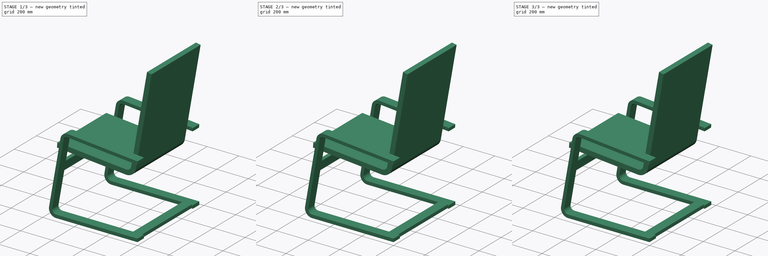
[diagram: build sequence overview — one tinted view per stage of 3, left to right]
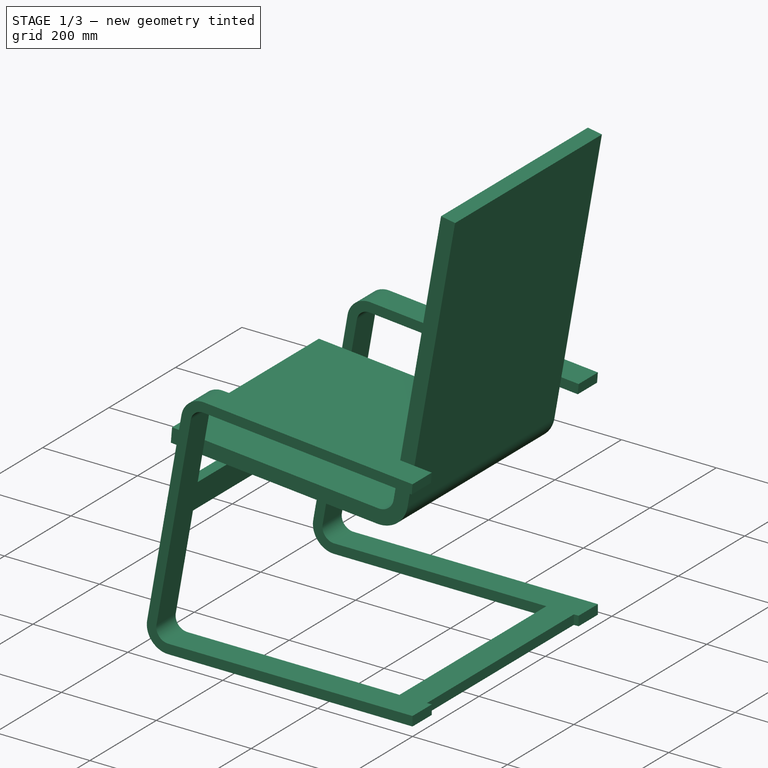
[diagram: stage 1 of 3 — iso view after this stage's code; geometry added in this stage tinted green]
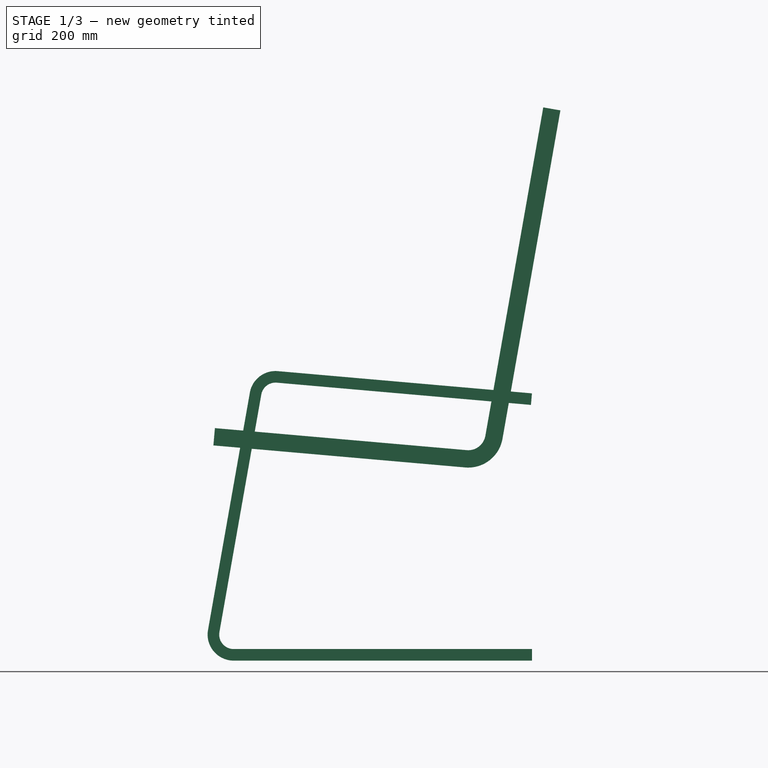
[diagram: stage 1 of 3 — front view after this stage's code; geometry added in this stage tinted green]
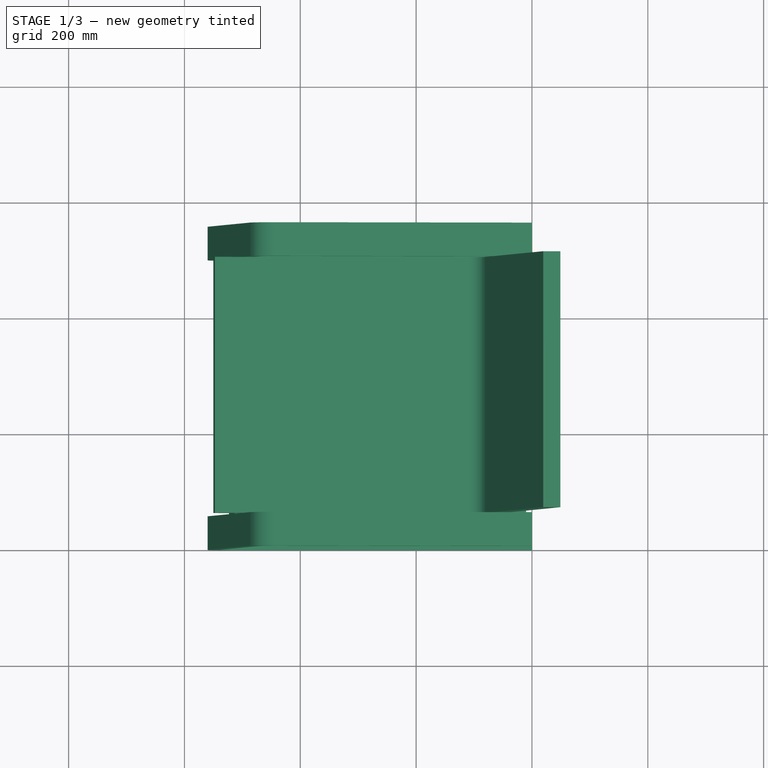
[diagram: stage 1 of 3 — top view after this stage's code; geometry added in this stage tinted green]
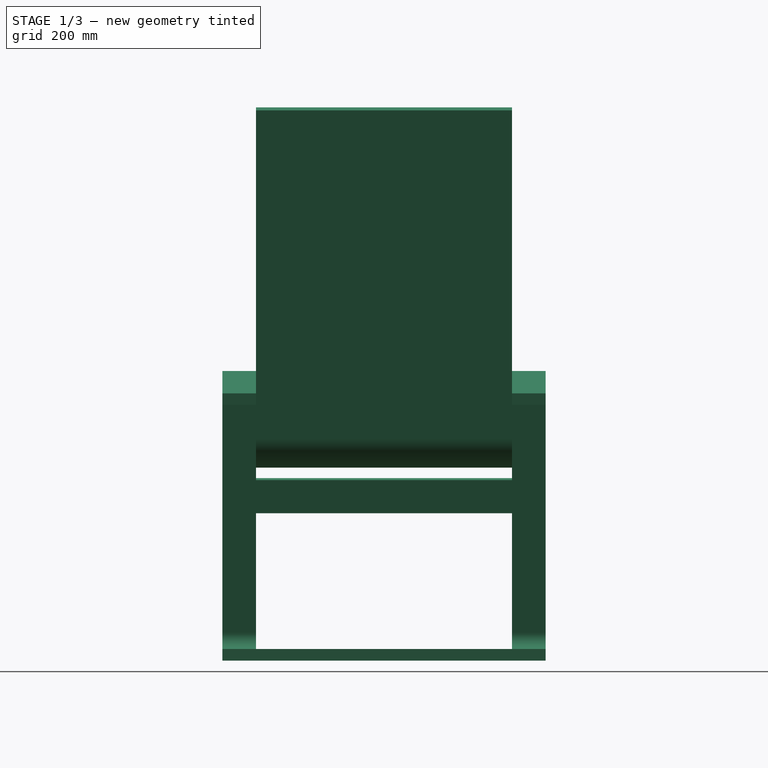
[diagram: stage 1 of 3 — right view after this stage's code; geometry added in this stage tinted green]
FCSTD DOCUMENT  (FreeCAD 0.16R5953 (Git))
Label: IkeaLikeChair
License: All rights reserved
LicenseURL: http://en.wikipedia.org/wiki/All_rights_reserved
objects: Sketcher::SketchObject×6, Part::Sweep×2, Part::FeaturePython×2, PartDesign::Pad×2, Part::Compound×1, Part::Feature×1
note: 16 computed .brp shape members not serialized (recipe doc carries the construction recipe); baked Part::Feature solids carry a one-line shape summary decoded from their .brp

FEATURE [Sketcher::SketchObject] Sketch004
  Placement = pos=(0,58,0) rot=(1,0,0;1.5708rad)
  sketch-geometry (7):
    g0: LineSegment StartX=-550 StartY=371.556 StartZ=0 EndX=-115.229 EndY=333.519 EndZ=0
    g1: LineSegment StartX=-50.9115 StartY=382.872 StartZ=0 EndX=49.0885 EndY=950 EndZ=0
    g2: ArcOfCircle CenterX=-110 CenterY=393.291 CenterZ=0 NormalX=0 NormalY=0 NormalZ=1 Radius=60 StartAngle=4.62512 EndAngle=6.10865
    g3: LineSegment [constr] StartX=-550 StartY=333.291 StartZ=0 EndX=49.0885 EndY=333.291 EndZ=0
    g4: LineSegment [constr] StartX=49.0885 StartY=333.291 StartZ=0 EndX=49.0885 EndY=950 EndZ=0
    g5: LineSegment [constr] StartX=-550 StartY=333.291 StartZ=0 EndX=-550 EndY=950 EndZ=0
    g6: LineSegment [constr] StartX=-550 StartY=950 StartZ=0 EndX=49.0885 EndY=950 EndZ=0
  constraints (22):
    c: Coincident(g2,g0)
    c: Coincident(g2,g1)
    c: Tangent(g2,g1)
    c: Tangent(g0,g2)
    c: Radius(g2) = 60
    c: Horizontal(g3)
    c: Coincident(g3,g4)
    c: Vertical(g4)
    c: Tangent(g2,g3)
    c: Coincident(g3,g5)
    c: Coincident(g5,g6)
    c: Coincident(g6,g4)
    c: Horizontal(g6)
    c: Vertical(g5)
    c: PointOnObject(g0,g5)
    c: DistanceY(g1) = 950
    c: DistanceX(g1,g3) = 100
    c: DistanceX(g3,g2) = 440
    c: DistanceX(g3) = -550
    c: Angle(g0,g3) = 0.0872665
    c: Angle(g1,g4) = 0.174533
    c: Coincident(g4,g1)
FEATURE [Sketcher::SketchObject] Sketch005
  Placement = pos=(-550,58,371.556) rot=(0.593426,0.593426,0.543775;2.14549rad)
  sketch-geometry (4):
    g0: LineSegment StartX=0 StartY=0 StartZ=0 EndX=442 EndY=0 EndZ=0
    g1: LineSegment StartX=442 StartY=0 StartZ=0 EndX=442 EndY=30 EndZ=0
    g2: LineSegment StartX=442 StartY=30 StartZ=0 EndX=0 EndY=30 EndZ=0
    g3: LineSegment StartX=0 StartY=30 StartZ=0 EndX=0 EndY=0 EndZ=0
  constraints (12):
    c: Coincident(g0,g1)
    c: Coincident(g1,g2)
    c: Coincident(g2,g3)
    c: Coincident(g3,g0)
    c: Horizontal(g0)
    c: Horizontal(g2)
    c: Vertical(g1)
    c: Vertical(g3)
    c: DistanceX(g2) = -442
    c: DistanceX(g0) = 0
    c: DistanceY(g0) = 0
    c: DistanceY(g3) = -30
FEATURE [Part::Sweep] Sweep001
  Frenet = true
  Sections = -> [Sketch005]
  Solid = true
  Spine = -> Sketch004 [Edge1,Edge2,Edge3]
  Transition = 1
FEATURE [Part::Feature] Compound001
  shape: bbox 609.1 x 558 x 955.2 mm, 70 faces, 2 solids (baked)
FEATURE [Part::FeaturePython] Equipment  label="Fauteil Ikea"  # WARN: FeaturePython — macro-defined, semantics opaque (R4)
  Base = -> Compound001
  MoveWithHost = false
  Role = 0
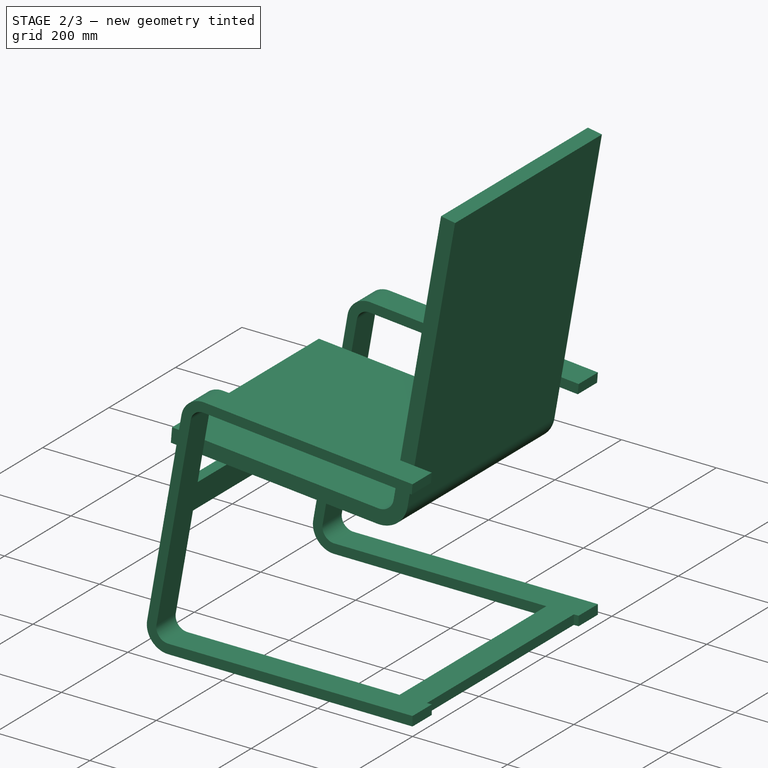
[diagram: stage 2 of 3 — iso view after this stage's code; geometry added in this stage tinted green]
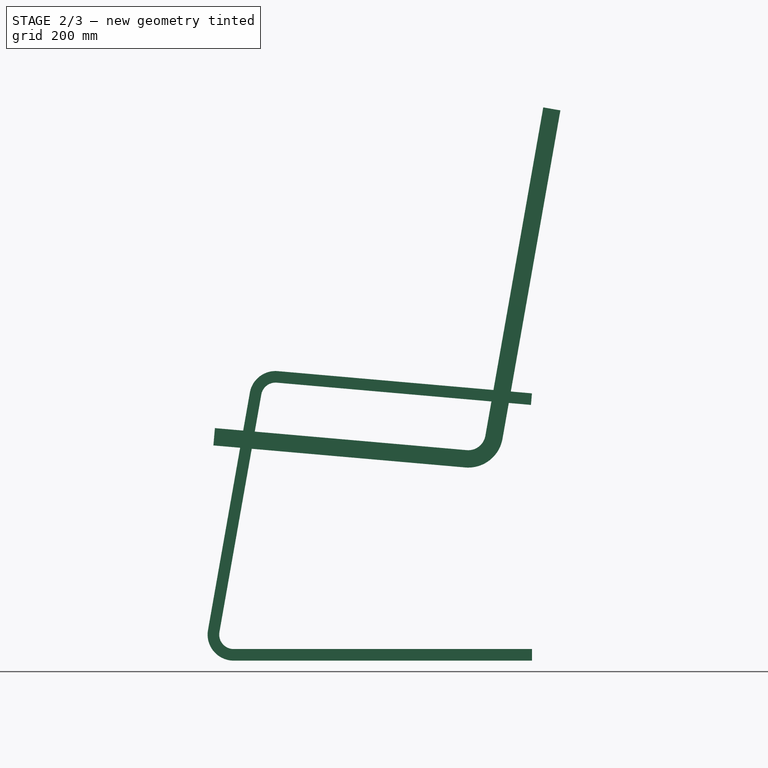
[diagram: stage 2 of 3 — front view after this stage's code; geometry added in this stage tinted green]
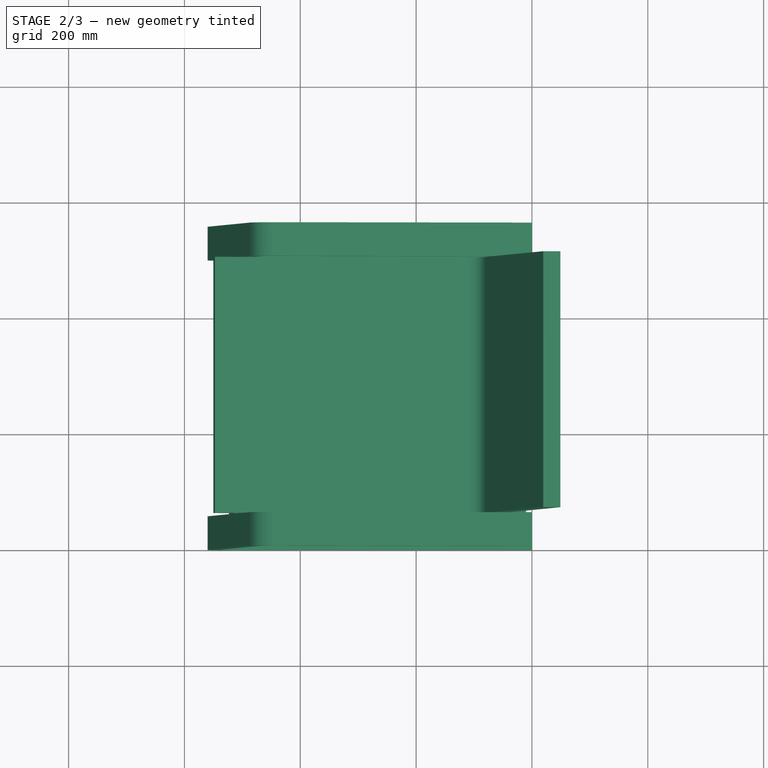
[diagram: stage 2 of 3 — top view after this stage's code; geometry added in this stage tinted green]
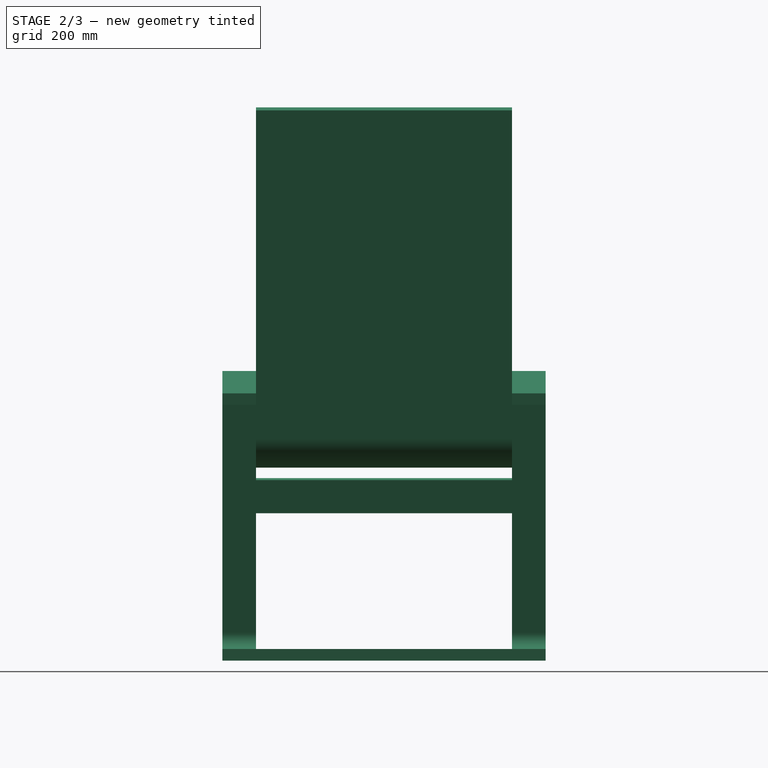
[diagram: stage 2 of 3 — right view after this stage's code; geometry added in this stage tinted green]
FEATURE [Sketcher::SketchObject] Sketch
  Placement = pos=(0,0,0) rot=(1,0,0;1.5708rad)
  sketch-geometry (7):
    g0: LineSegment StartX=0 StartY=0 StartZ=0 EndX=-515 EndY=0 EndZ=0
    g1: ArcOfCircle CenterX=-515 CenterY=45 CenterZ=0 NormalX=0 NormalY=0 NormalZ=1 Radius=45 StartAngle=2.96706 EndAngle=4.71239
    g2: LineSegment StartX=-559.316 StartY=52.8142 StartZ=0 EndX=-487.022 EndY=462.814 EndZ=0
    g3: ArcOfCircle CenterX=-442.706 CenterY=455 CenterZ=0 NormalX=0 NormalY=0 NormalZ=1 Radius=45 StartAngle=1.48353 EndAngle=2.96706
    g4: LineSegment StartX=-438.784 StartY=499.829 StartZ=0 EndX=0 EndY=461.44 EndZ=0
    g5: LineSegment [constr] StartX=-560 StartY=500 StartZ=0 EndX=-560 EndY=0 EndZ=0
    g6: LineSegment [constr] StartX=-560 StartY=500 StartZ=0 EndX=0 EndY=500 EndZ=0
  constraints (25):
    c: Horizontal(g0)
    c: DistanceX(g0) = 0
    c: DistanceY(g0) = 0
    c: Coincident(g1,g0)
    c: Coincident(g2,g1)
    c: Coincident(g3,g2)
    c: Coincident(g3,g4)
    c: Tangent(g3,g4)
    c: Tangent(g3,g2)
    c: Tangent(g2,g1)
    c: Tangent(g1,g0)
    c: Vertical(g5)
    c: Horizontal(g6)
    c: Coincident(g6,g5)
    c: PointOnObject(g5,g-1)
    c: Tangent(g5,g1)
    c: Tangent(g3,g6)
    c: DistanceX(g5) = -560
    c: DistanceY(g5) = -500
    c: PointOnObject(g6,g-2)
    c: Radius(g1) = 45
    c: Equal(g3,g1)
    c: Angle(g2,g5) = 0.174533
    c: Angle(g4,g6) = 0.0872665
    c: PointOnObject(g4,g-2)
FEATURE [Sketcher::SketchObject] Sketch001
  Placement = pos=(0,0,0) rot=(0.57735,0.57735,0.57735;2.0944rad)
  sketch-geometry (4):
    g0: LineSegment StartX=0 StartY=0 StartZ=0 EndX=58 EndY=0 EndZ=0
    g1: LineSegment StartX=58 StartY=0 StartZ=0 EndX=58 EndY=20 EndZ=0
    g2: LineSegment StartX=58 StartY=20 StartZ=0 EndX=0 EndY=20 EndZ=0
    g3: LineSegment StartX=0 StartY=20 StartZ=0 EndX=0 EndY=0 EndZ=0
  constraints (12):
    c: Coincident(g0,g1)
    c: Coincident(g1,g2)
    c: Coincident(g2,g3)
    c: Coincident(g3,g0)
    c: Horizontal(g0)
    c: Horizontal(g2)
    c: Vertical(g1)
    c: Vertical(g3)
    c: DistanceX(g2) = -58
    c: DistanceY(g3) = -20
    c: DistanceX(g0) = 0
    c: DistanceY(g0) = 0
FEATURE [Part::Sweep] Sweep
  Frenet = true
  Sections = -> [Sketch001]
  Solid = true
  Spine = -> Sketch [Edge1,Edge2,Edge3,Edge4,Edge5]
  Transition = 1
FEATURE [Part::FeaturePython] Array  # Draft array (typed FeaturePython)
  Angle = 360
  ArrayType = 0
  Axis = (0,0,1)
  Base = -> Sweep
  Center = (0,0,0)
  Fuse = false
  IntervalAxis = (0,0,0)
  IntervalX = (1,0,0)
  IntervalY = (0,500,0)
  IntervalZ = (0,0,0)
  NumberPolar = 1
  NumberX = 1
  NumberY = 2
  NumberZ = 1
FEATURE [Sketcher::SketchObject] Sketch002
  ExternalGeometry = -> [Array]
  Placement = pos=(0,58,0) rot=(0,0.707107,0.707107;3.14159rad)
  Support = -> Array [Face10]
  sketch-geometry (4):
    g0: LineSegment StartX=503.445 StartY=254.501 StartZ=0 EndX=523.141 EndY=257.974 EndZ=0
    g1: LineSegment StartX=523.141 StartY=257.974 StartZ=0 EndX=513.07 EndY=315.093 EndZ=0
    g2: LineSegment StartX=513.07 StartY=315.093 StartZ=0 EndX=493.373 EndY=311.62 EndZ=0
    g3: LineSegment StartX=493.373 StartY=311.62 StartZ=0 EndX=503.445 EndY=254.501 EndZ=0
  constraints (12):
    c: Coincident(g0,g1)
    c: Coincident(g1,g2)
    c: Coincident(g2,g3)
    c: Coincident(g3,g0)
    c: Perpendicular(g2,g1)
    c: Perpendicular(g3,g2)
    c: Equal(g2,g0)
    c: Distance(g1) = 58
    c: Distance(g2) = 20
    c: PointOnObject(g0,g-3)
    c: PointOnObject(g1,g-3)
    c: Distance(g-3,g1) = 150
FEATURE [PartDesign::Pad] Pad
  Length = 10
  Length2 = 100
  Sketch = -> Sketch002
  Type = 3
  UpToFace = -> Array [Face34]
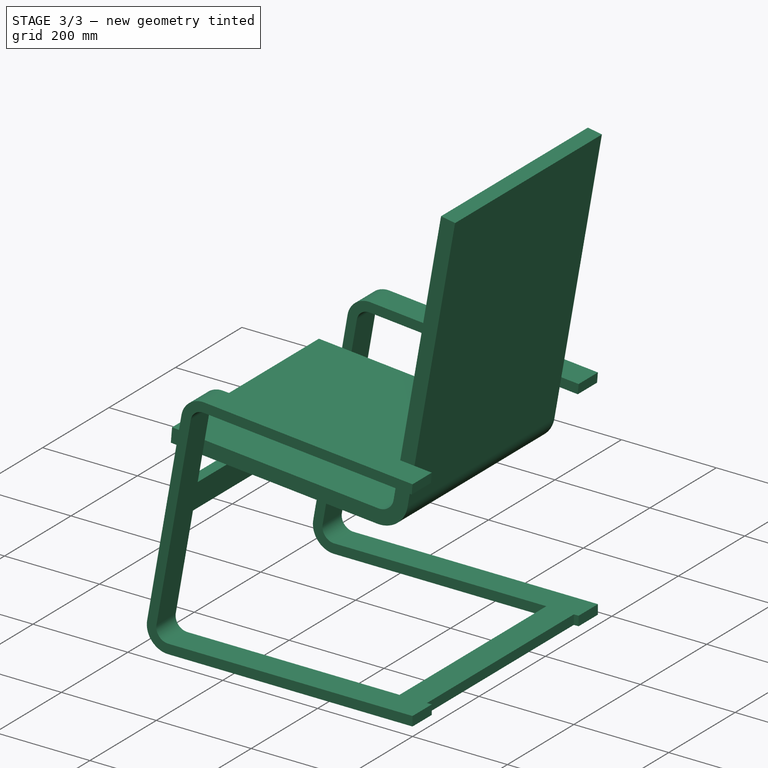
[diagram: stage 3 of 3 — iso view after this stage's code; geometry added in this stage tinted green]
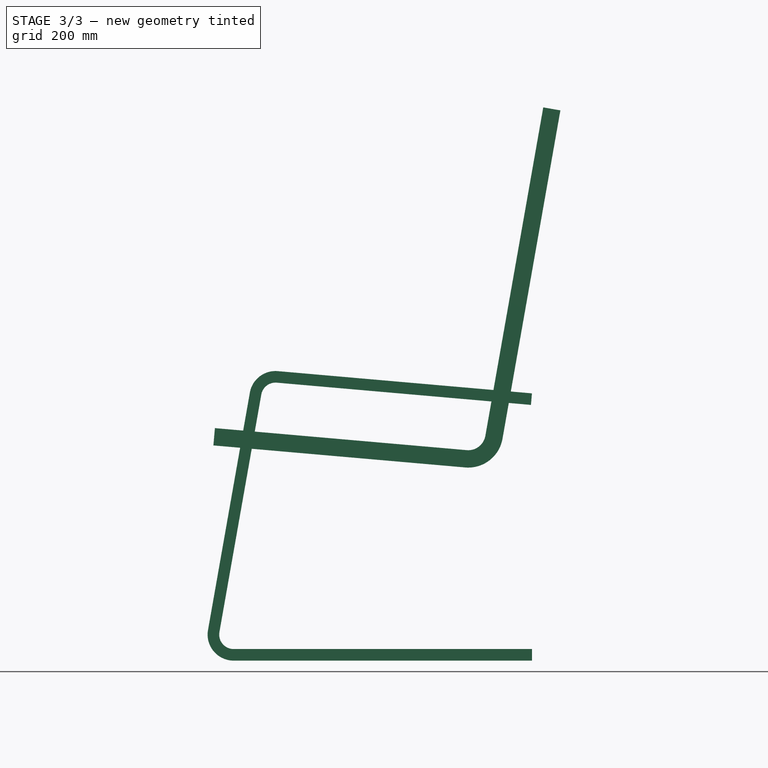
[diagram: stage 3 of 3 — front view after this stage's code; geometry added in this stage tinted green]
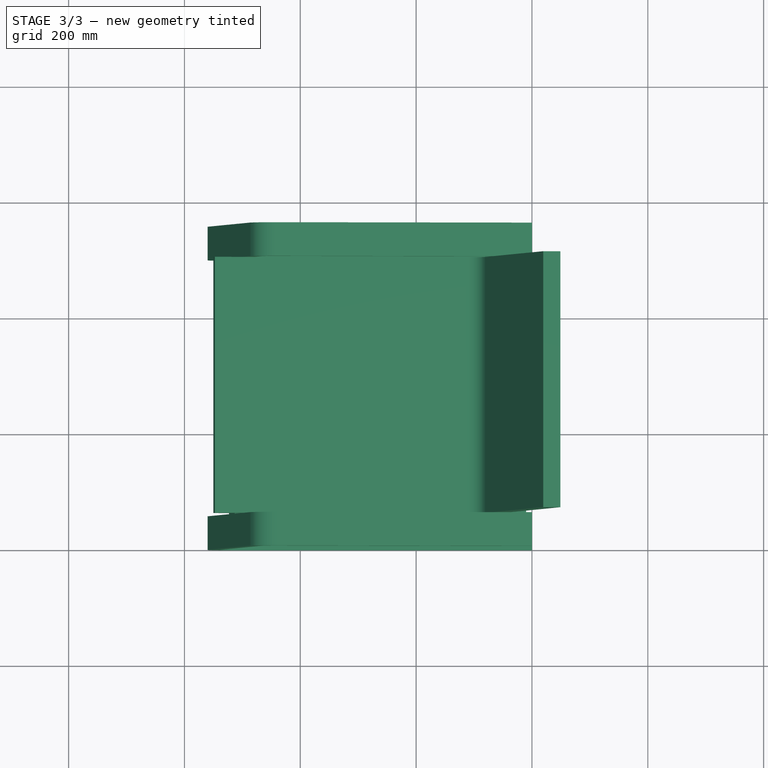
[diagram: stage 3 of 3 — top view after this stage's code; geometry added in this stage tinted green]
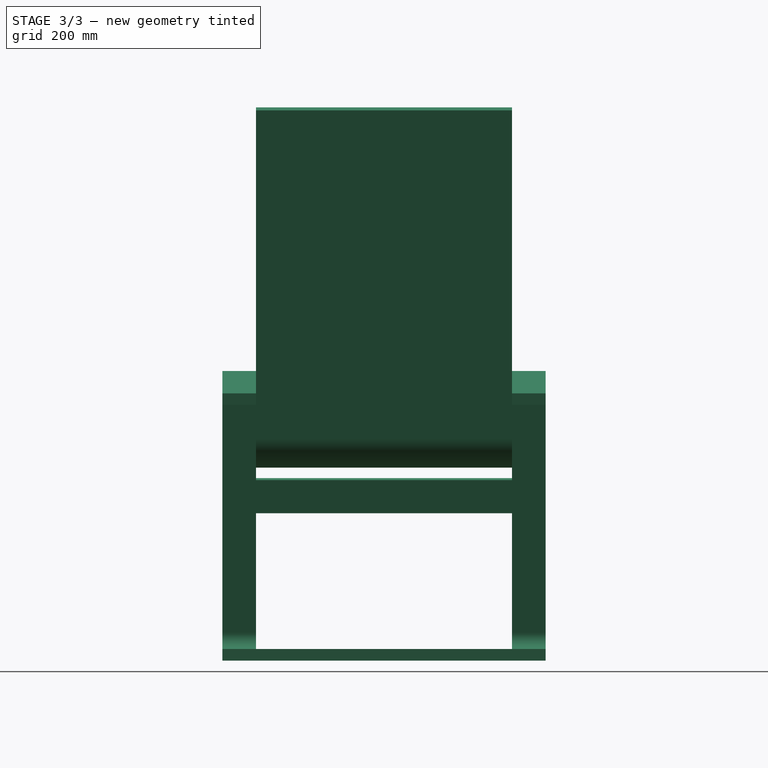
[diagram: stage 3 of 3 — right view after this stage's code; geometry added in this stage tinted green]
FEATURE [Sketcher::SketchObject] Sketch003
  ExternalGeometry = -> [Pad]
  Placement = pos=(0,58,0) rot=(0,0.707107,0.707107;3.14159rad)
  Support = -> Pad [Face4]
  sketch-geometry (4):
    g0: LineSegment StartX=10 StartY=0 StartZ=0 EndX=68 EndY=0 EndZ=0
    g1: LineSegment StartX=68 StartY=0 StartZ=0 EndX=68 EndY=20 EndZ=0
    g2: LineSegment StartX=68 StartY=20 StartZ=0 EndX=10 EndY=20 EndZ=0
    g3: LineSegment StartX=10 StartY=20 StartZ=0 EndX=10 EndY=0 EndZ=0
  constraints (12):
    c: Coincident(g0,g1)
    c: Coincident(g1,g2)
    c: Coincident(g2,g3)
    c: Coincident(g3,g0)
    c: Horizontal(g0)
    c: Horizontal(g2)
    c: Vertical(g1)
    c: Vertical(g3)
    c: DistanceX(g0) = 58
    c: DistanceY(g3) = -20
    c: PointOnObject(g0,g-3)
    c: DistanceX(g-1,g0) = 10
FEATURE [PartDesign::Pad] Pad001
  Length = 10
  Length2 = 100
  Sketch = -> Sketch003
  Type = 3
  UpToFace = -> Pad [Face43]
FEATURE [Part::Compound] Compound
  Links = -> [Pad001,Sweep001]
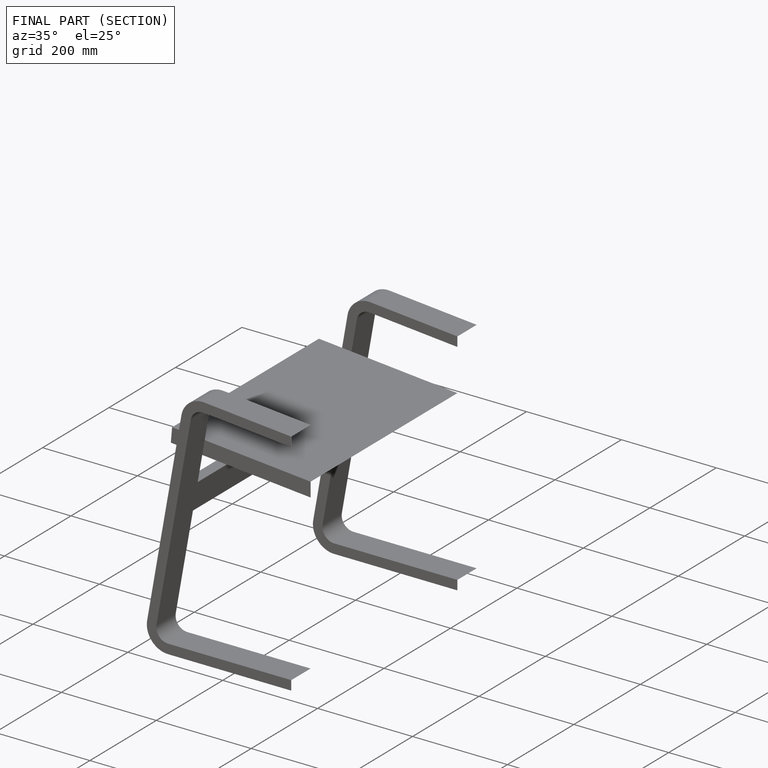
[diagram: finished part — half-section view (interior)]
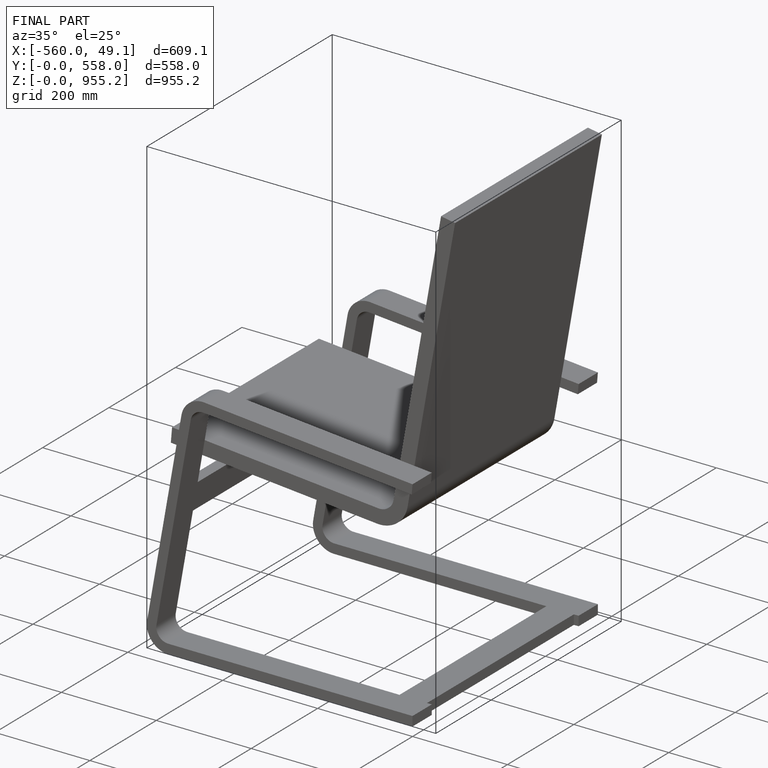
[diagram: finished part — iso view with bounding-box wireframe]
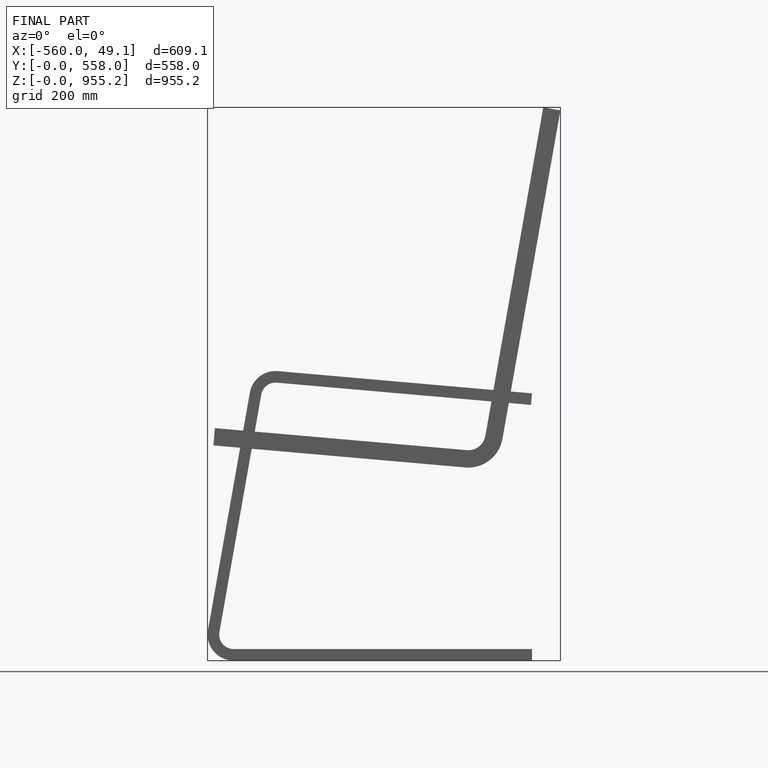
[diagram: finished part — front view with bounding-box wireframe]
